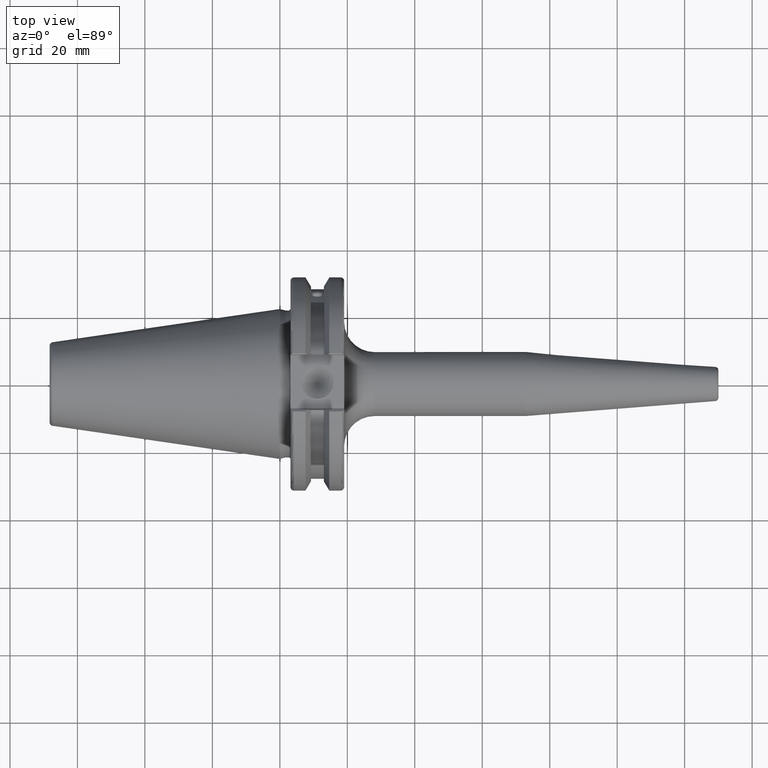
[diagram: clean part render]
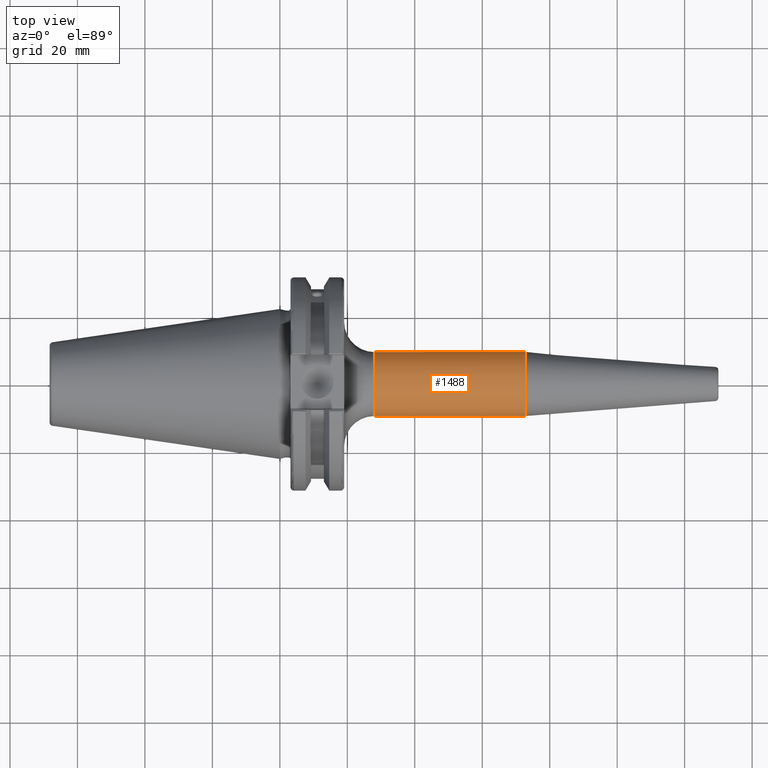
[diagram: same view with one face highlighted and labeled with its STEP entity id]
A machine part, top view. The second image highlights one B-rep face of the part: STEP entity #1488.
In plain terms, the highlighted cylindrical surface (bore or boss wall) has radius 9.5 mm, axis along (1, 0, 0).
Its self-contained STEP definition (entity closure, byte-faithful):
#79=CYLINDRICAL_SURFACE('',#1608,9.5);
#158=LINE('',#2251,#254);
#254=VECTOR('',#1805,9.5);
#368=FACE_OUTER_BOUND('',#456,.T.);
#456=EDGE_LOOP('',(#1027,#1028,#1029,#1030,#1031));
#556=CIRCLE('',#1600,9.5);
#558=CIRCLE('',#1604,9.5);
#561=CIRCLE('',#1607,9.5);
#628=VERTEX_POINT('',#2236);
#630=VERTEX_POINT('',#2243);
#631=VERTEX_POINT('',#2244);
#782=EDGE_CURVE('',#628,#628,#556,.T.);
#784=EDGE_CURVE('',#630,#631,#558,.T.);
#787=EDGE_CURVE('',#631,#630,#561,.T.);
#788=EDGE_CURVE('',#628,#630,#158,.T.);
#1027=ORIENTED_EDGE('',*,*,#782,.F.);
#1028=ORIENTED_EDGE('',*,*,#788,.T.);
#1029=ORIENTED_EDGE('',*,*,#787,.F.);
#1030=ORIENTED_EDGE('',*,*,#784,.F.);
#1031=ORIENTED_EDGE('',*,*,#788,.F.);
#1488=ADVANCED_FACE('',(#368),#79,.T.);
#1600=AXIS2_PLACEMENT_3D('',#2238,#1787,#1788);
#1604=AXIS2_PLACEMENT_3D('',#2245,#1795,#1796);
#1607=AXIS2_PLACEMENT_3D('',#2249,#1801,#1802);
#1608=AXIS2_PLACEMENT_3D('',#2250,#1803,#1804);
#1787=DIRECTION('center_axis',(1.,0.,0.));
#1788=DIRECTION('ref_axis',(0.,0.,-1.));
#1795=DIRECTION('center_axis',(-1.,0.,0.));
#1796=DIRECTION('ref_axis',(0.,-1.,-1.22464679914735E-16));
#1801=DIRECTION('center_axis',(-1.,0.,0.));
#1802=DIRECTION('ref_axis',(0.,-1.,-1.22464679914735E-16));
#1803=DIRECTION('center_axis',(1.,0.,0.));
#1804=DIRECTION('ref_axis',(0.,1.,0.));
#1805=DIRECTION('',(-1.,0.,0.));
#2236=CARTESIAN_POINT('',(72.8220786872138,-9.5,-1.16341445918999E-15));
#2238=CARTESIAN_POINT('Origin',(72.8220786872138,0.,0.));
#2243=CARTESIAN_POINT('',(28.05,-9.5,-1.16341445918999E-15));
#2244=CARTESIAN_POINT('',(28.05,-1.16341445918999E-15,-9.5));
#2245=CARTESIAN_POINT('Origin',(28.05,0.,0.));
#2249=CARTESIAN_POINT('Origin',(28.05,0.,0.));
#2250=CARTESIAN_POINT('Origin',(45.9360393436069,0.,0.));
#2251=CARTESIAN_POINT('',(45.9360393436069,-9.5,-1.16341445918999E-15));